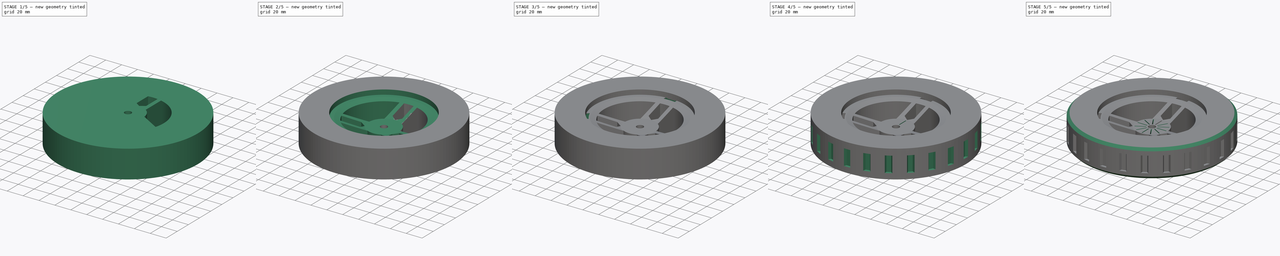
[diagram: build sequence overview — one tinted view per stage of 5, left to right]
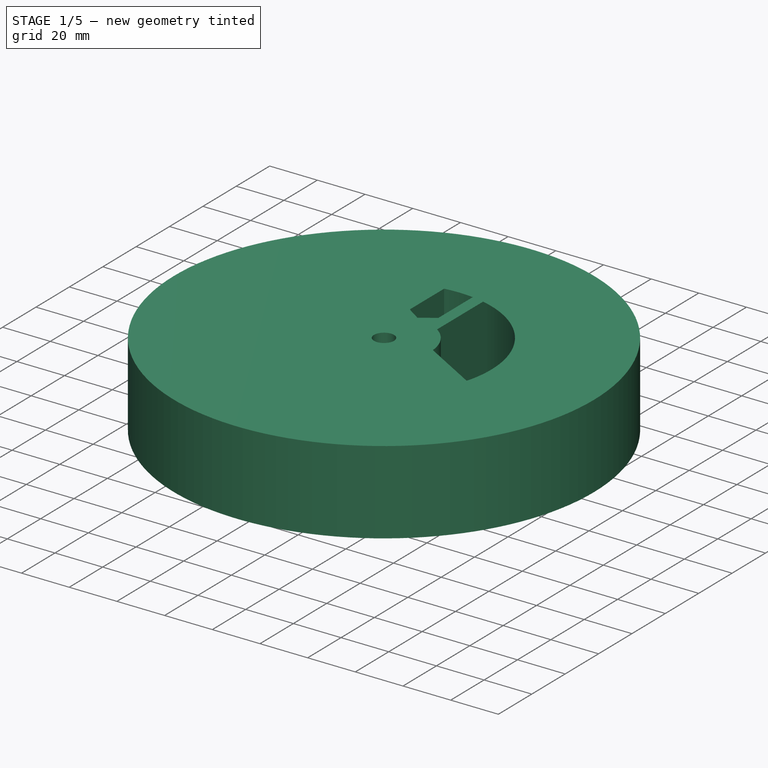
[diagram: stage 1 of 5 — iso view after this stage's code; geometry added in this stage tinted green]
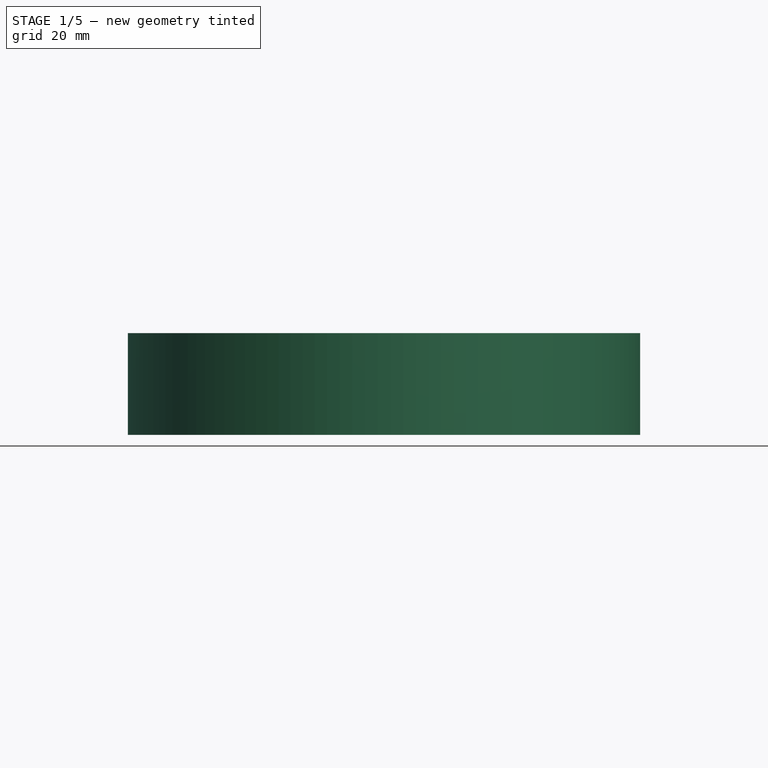
[diagram: stage 1 of 5 — front view after this stage's code; geometry added in this stage tinted green]
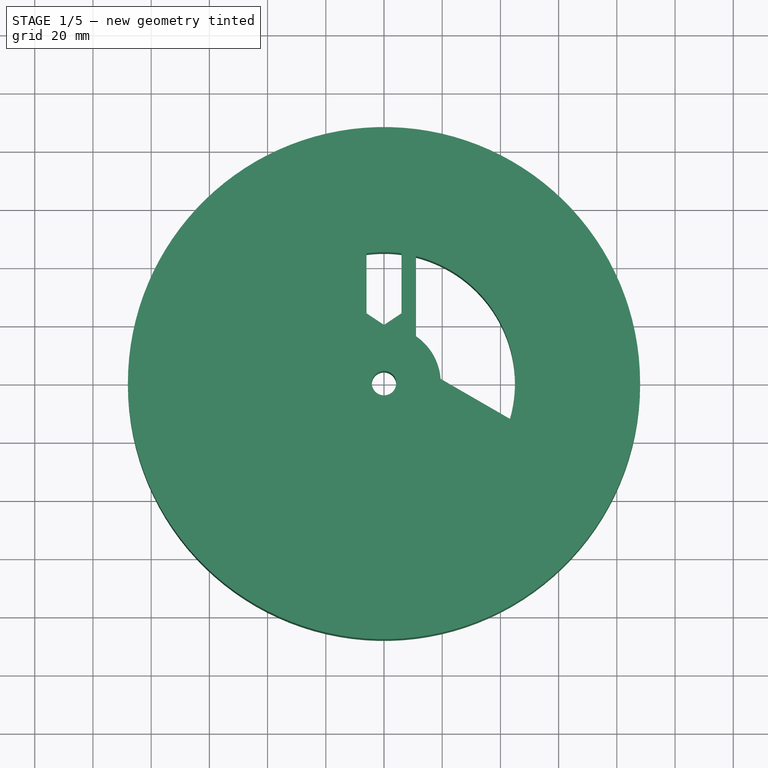
[diagram: stage 1 of 5 — top view after this stage's code; geometry added in this stage tinted green]
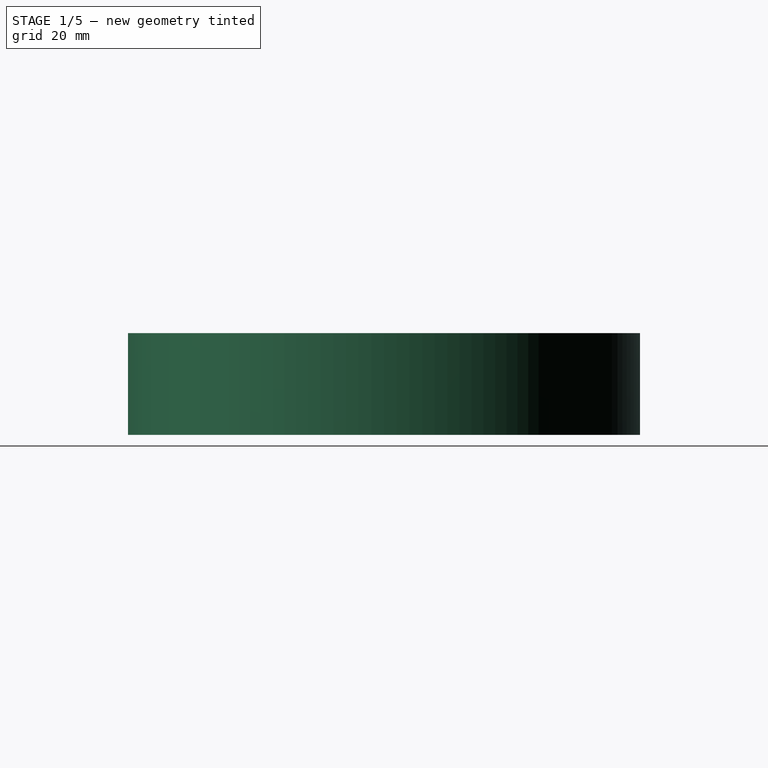
[diagram: stage 1 of 5 — right view after this stage's code; geometry added in this stage tinted green]
FCSTD DOCUMENT  (FreeCAD 0.18.4R)
Label: lawnmower-frontwheel
License: All rights reserved
LicenseURL: http://en.wikipedia.org/wiki/All_rights_reserved
objects: Sketcher::SketchObject×8, PartDesign::Pocket×6, PartDesign::PolarPattern×6, PartDesign::Chamfer×2, PartDesign::Pad×1, PartDesign::Groove×1, PartDesign::Plane×1, PartDesign::Body×1
note: 34 computed .brp shape members not serialized (recipe doc carries the construction recipe); baked Part::Feature solids carry a one-line shape summary decoded from their .brp

FEATURE [Sketcher::SketchObject] Sketch
  MapMode = 5
  Support = -> [XY_Plane]
  sketch-geometry (2):
    g0: Circle CenterX=0 CenterY=0 CenterZ=0 NormalX=0 NormalY=0 NormalZ=1 AngleXU=0 Radius=88
    g1: Circle CenterX=0 CenterY=0 CenterZ=0 NormalX=0 NormalY=0 NormalZ=1 AngleXU=0 Radius=4.2
  constraints (4):
    c: Coincident(g0,g-1)
    c: Radius(g0) = 88
    c: Coincident(g1,g0)
    c: Radius(g1) = 4.2
FEATURE [PartDesign::Pad] Pad
  Length = 35
  Length2 = 100
  Profile = -> Sketch
  Refine = true
  Type = 0
FEATURE [Sketcher::SketchObject] Sketch001
  MapMode = 5
  Support = -> [XY_Plane]
  sketch-geometry (7):
    g0: Circle [constr] CenterX=0 CenterY=0 CenterZ=0 NormalX=0 NormalY=0 NormalZ=1 AngleXU=0 Radius=45
    g1: Circle [constr] CenterX=0 CenterY=0 CenterZ=0 NormalX=0 NormalY=0 NormalZ=1 AngleXU=0 Radius=20
    g2: LineSegment StartX=-6 StartY=44.5982 StartZ=0 EndX=-6 EndY=24 EndZ=0
    g3: LineSegment StartX=-6 StartY=24 StartZ=0 EndX=0 EndY=20 EndZ=0
    g4: LineSegment StartX=0 StartY=20 StartZ=0 EndX=6 EndY=24 EndZ=0
    g5: LineSegment StartX=6 StartY=24 StartZ=0 EndX=6 EndY=44.5982 EndZ=0
    g6: ArcOfCircle CenterX=0 CenterY=0 CenterZ=0 NormalX=0 NormalY=0 NormalZ=1 AngleXU=0 Radius=45 StartAngle=1.43706 EndAngle=1.70453
  constraints (18):
    c: Coincident(g0,g-1)
    c: Radius(g0) = 45
    c: Coincident(g1,g0)
    c: Radius(g1) = 20
    c: PointOnObject(g2,g0)
    c: Vertical(g2)
    c: Coincident(g2,g3)
    c: PointOnObject(g3,g1)
    c: Coincident(g3,g4)
    c: Coincident(g4,g5)
    c: Vertical(g5)
    c: Coincident(g6,g-1)
    c: Coincident(g6,g2)
    c: Coincident(g6,g5)
    c: DistanceY(g4,g4) = 4
    c: Symmetric(g2,g4,g-2)
    c: PointOnObject(g3,g-2)
    c: DistanceX(g2,g5) = 12
FEATURE [PartDesign::Pocket] Pocket
  BaseFeature = -> Pad
  Length = 5
  Length2 = 100
  Midplane = true
  Profile = -> Sketch001
  Refine = true
  Type = 1
FEATURE [Sketcher::SketchObject] CopySketch002
  sketch-geometry (8):
    g0: Circle [constr] CenterX=0 CenterY=0 CenterZ=0 NormalX=0 NormalY=0 NormalZ=1 AngleXU=0 Radius=45
    g1: Circle [constr] CenterX=0 CenterY=0 CenterZ=0 NormalX=0 NormalY=0 NormalZ=1 AngleXU=0 Radius=19.5
    g2: LineSegment StartX=19.4441 StartY=1.47566 StartZ=0 EndX=43.2889 EndY=-12.2911 EndZ=0
    g3: ArcOfCircle CenterX=0 CenterY=0 CenterZ=0 NormalX=0 NormalY=0 NormalZ=1 AngleXU=0 Radius=45 StartAngle=6.00653 EndAngle=7.60703
    g4: ArcOfCircle CenterX=0 CenterY=0 CenterZ=0 NormalX=0 NormalY=0 NormalZ=1 AngleXU=0 Radius=19.5 StartAngle=0.0757472 EndAngle=0.97145
    g5: LineSegment [constr] StartX=0 StartY=0 StartZ=0 EndX=11 EndY=16.1012 EndZ=0
    g6: LineSegment StartX=11 StartY=16.1012 StartZ=0 EndX=11 EndY=43.6348 EndZ=0
    g7: LineSegment [constr] StartX=0 StartY=0 StartZ=0 EndX=38.9711 EndY=-22.5 EndZ=0
  constraints (21):
    c: Coincident(g0,g-1)
    c: Radius(g0) = 45
    c: Coincident(g1,g0)
    c: Radius(g1) = 19.5
    c: PointOnObject(g4,g1)
    c: PointOnObject(g3,g0)
    c: Coincident(g3,g-1)
    c: Coincident(g3,g2)
    c: Coincident(g4,g3)
    c: Coincident(g4,g2)
    c: Coincident(g5,g3)
    c: Coincident(g6,g4)
    c: Vertical(g6)
    c: Coincident(g3,g6)
    c: Coincident(g5,g4)
    c: DistanceX(g-1,g3) = 11
    c: Coincident(g7,g3)
    c: PointOnObject(g7,g0)
    c: Angle(g7,g-2) = 2.0944
    c: Parallel(g7,g2)
    c: Distance(g2,g7) = 11
FEATURE [PartDesign::Pocket] Pocket001
  BaseFeature = -> Pocket
  Length = 5
  Length2 = 100
  Midplane = true
  Profile = -> CopySketch002
  Refine = true
  Type = 1
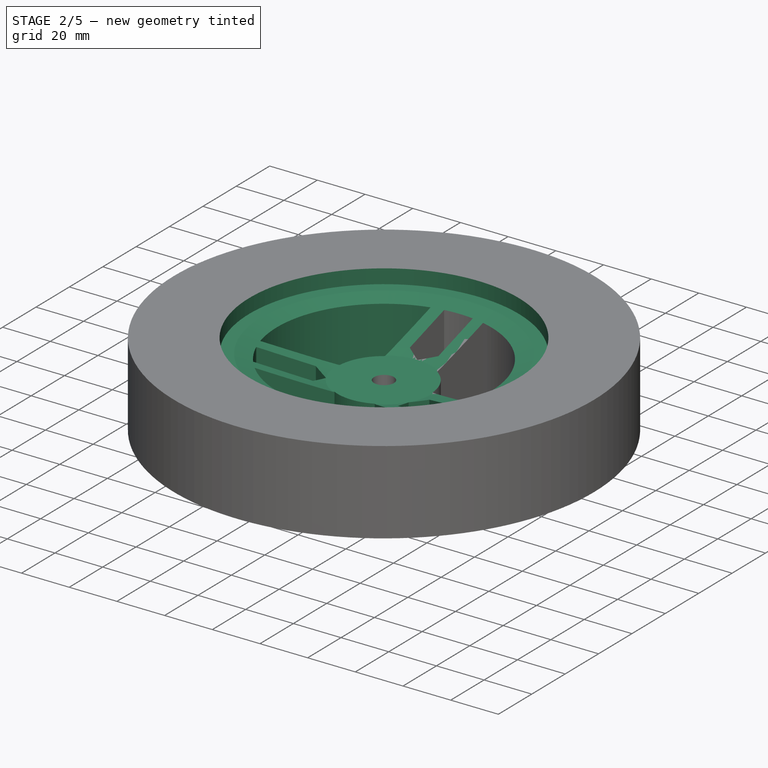
[diagram: stage 2 of 5 — iso view after this stage's code; geometry added in this stage tinted green]
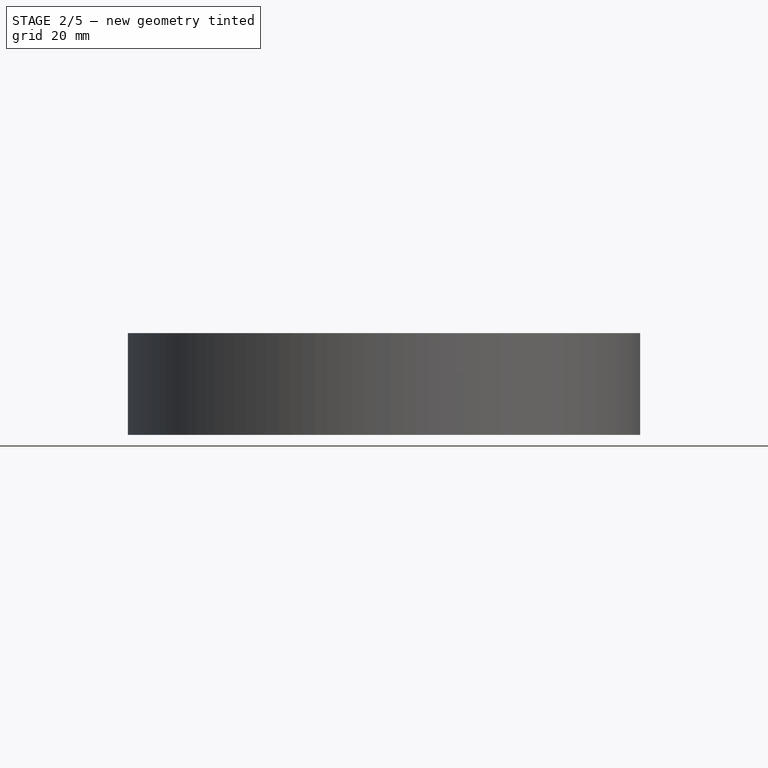
[diagram: stage 2 of 5 — front view after this stage's code; geometry added in this stage tinted green]
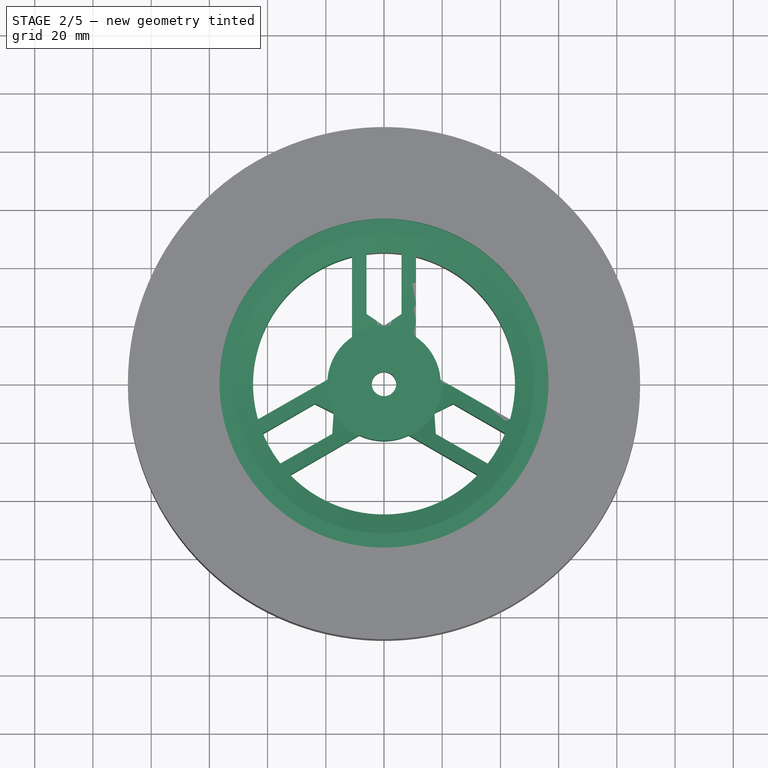
[diagram: stage 2 of 5 — top view after this stage's code; geometry added in this stage tinted green]
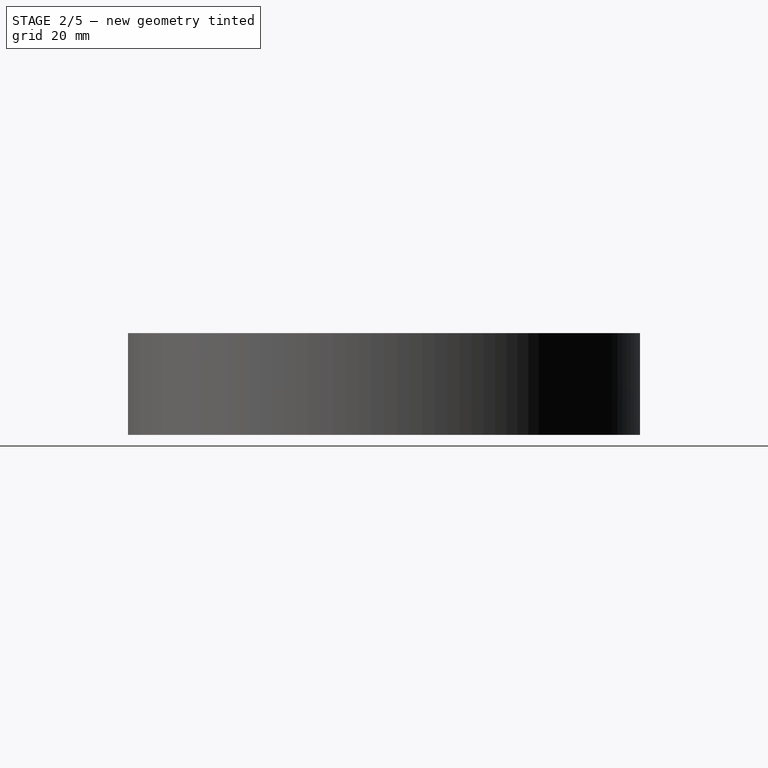
[diagram: stage 2 of 5 — right view after this stage's code; geometry added in this stage tinted green]
FEATURE [PartDesign::PolarPattern] PolarPattern
  Angle = 360
  Axis = -> CopySketch002 [N_Axis]
  BaseFeature = -> Pocket001
  Occurrences = 3
  Originals = -> [Pocket001]
  Refine = true
FEATURE [PartDesign::PolarPattern] PolarPattern001
  Angle = 360
  Axis = -> Sketch001 [N_Axis]
  BaseFeature = -> PolarPattern
  Occurrences = 3
  Originals = -> [Pocket]
  Refine = true
FEATURE [Sketcher::SketchObject] Sketch002  label="hubcap_cutout"
  MapMode = 5
  Placement = pos=(0,0,0) rot=(1,0,0;1.5708rad)
  Support = -> [XZ_Plane]
  sketch-geometry (6):
    g0: LineSegment StartX=0 StartY=35 StartZ=0 EndX=56.5 EndY=35 EndZ=0
    g1: LineSegment StartX=56.5 StartY=35 StartZ=0 EndX=56.5 EndY=29 EndZ=0
    g2: LineSegment StartX=56.5 StartY=29 StartZ=0 EndX=51.5 EndY=29 EndZ=0
    g3: LineSegment StartX=51.5 StartY=29 StartZ=0 EndX=20 EndY=19 EndZ=0
    g4: LineSegment StartX=20 StartY=19 StartZ=0 EndX=0 EndY=19 EndZ=0
    g5: LineSegment StartX=0 StartY=19 StartZ=0 EndX=0 EndY=35 EndZ=0
  constraints (18):
    c: Horizontal(g0)
    c: Coincident(g0,g1)
    c: Vertical(g1)
    c: Coincident(g1,g2)
    c: Coincident(g2,g3)
    c: Coincident(g3,g4)
    c: PointOnObject(g4,g-2)
    c: Horizontal(g4)
    c: Coincident(g4,g5)
    c: Vertical(g5)
    c: Coincident(g5,g0)
    c: DistanceY(g-1,g0) = 35
    c: DistanceY(g-1,g4) = 19
    c: DistanceX(g0,g0) = 56.5
    c: Horizontal(g2)
    c: DistanceY(g1,g1) = 6
    c: DistanceX(g2,g2) = 5
    c: DistanceX(g4,g4) = 20
FEATURE [PartDesign::Groove] Groove
  Angle = 360
  Axis = (0,-2e-16,1)
  Base = (0,0,0)
  BaseFeature = -> PolarPattern001
  Profile = -> Sketch002
  ReferenceAxis = -> Sketch002 [V_Axis]
  Refine = true
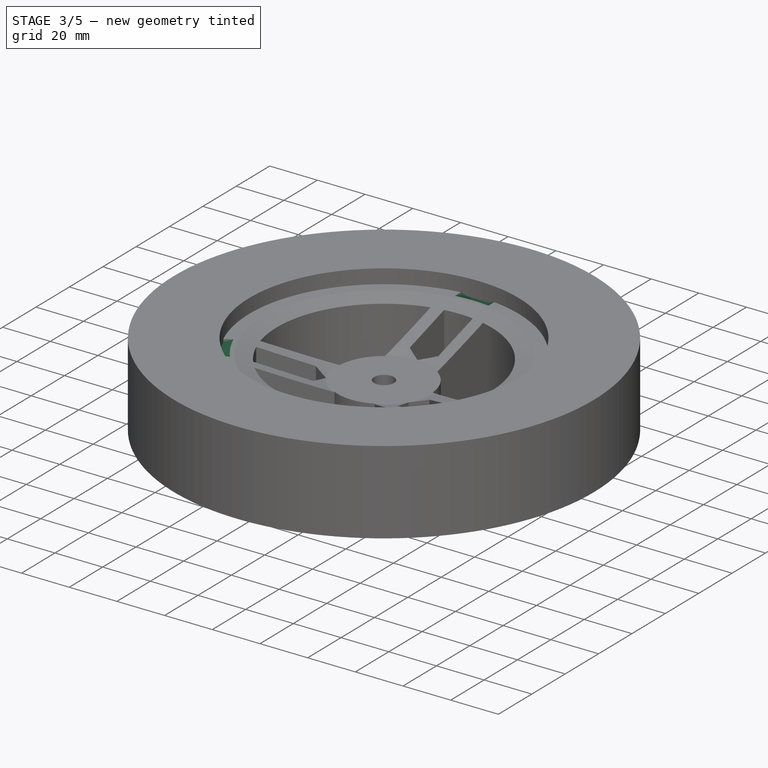
[diagram: stage 3 of 5 — iso view after this stage's code; geometry added in this stage tinted green]
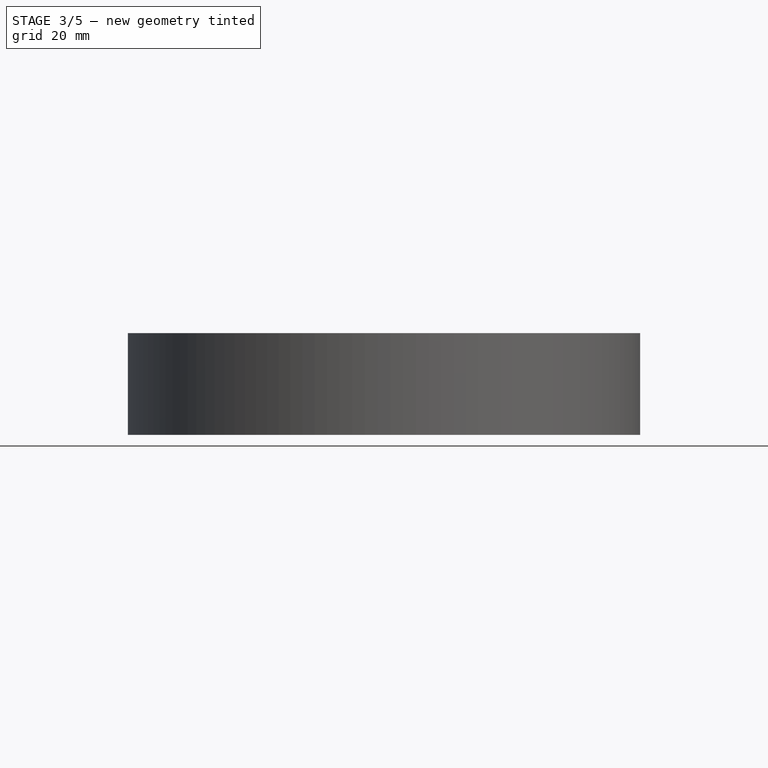
[diagram: stage 3 of 5 — front view after this stage's code; geometry added in this stage tinted green]
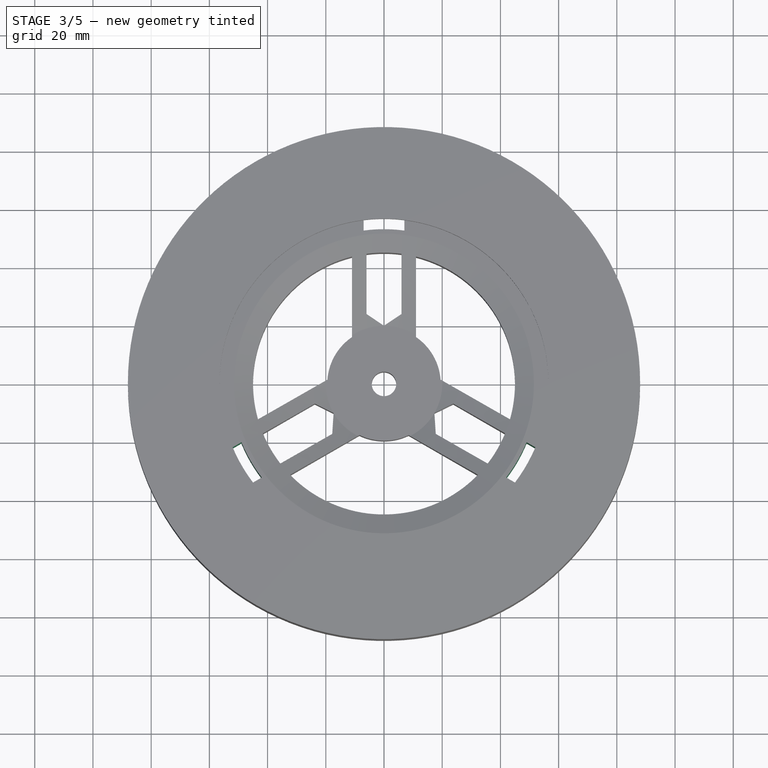
[diagram: stage 3 of 5 — top view after this stage's code; geometry added in this stage tinted green]
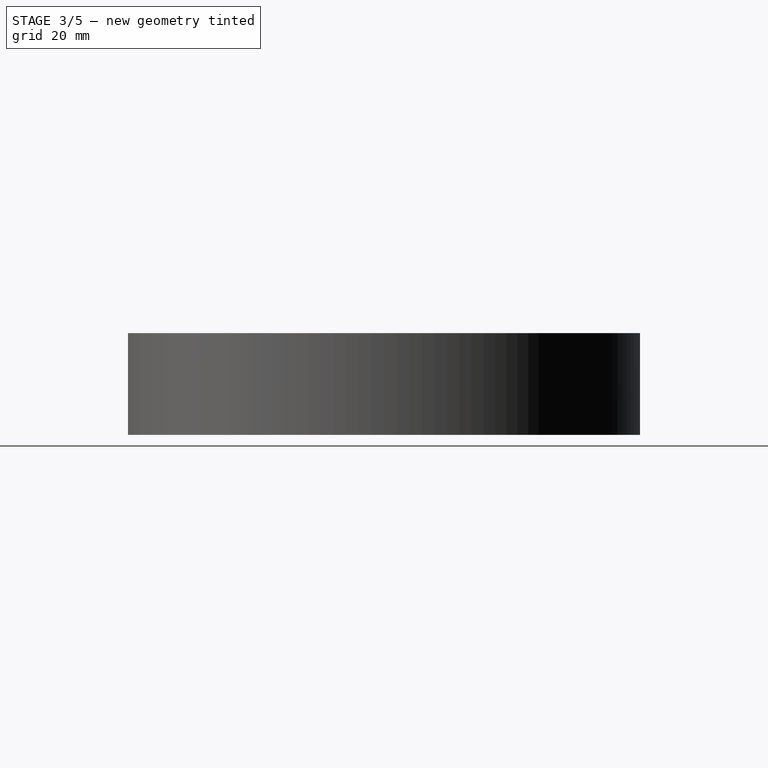
[diagram: stage 3 of 5 — right view after this stage's code; geometry added in this stage tinted green]
FEATURE [PartDesign::Plane] DatumPlane
  AttachmentOffset = pos=(0,0,17) rot=(0,0,1;0rad)
  Length = 211.187
  MapMode = 5
  Placement = pos=(0,0,17) rot=(0,0,1;0rad)
  ResizeMode = 0
  Support = -> [XY_Plane]
  Width = 211.177
FEATURE [Sketcher::SketchObject] Sketch003  label="tredcutout"
  MapMode = 5
  Placement = pos=(0,0,17) rot=(0,0,1;0rad)
  Support = -> [DatumPlane]
  sketch-geometry (4):
    g0: LineSegment StartX=-5 StartY=90 StartZ=0 EndX=5 EndY=90 EndZ=0
    g1: LineSegment StartX=5 StartY=90 StartZ=0 EndX=2.5 EndY=85 EndZ=0
    g2: LineSegment StartX=2.5 StartY=85 StartZ=0 EndX=-2.5 EndY=85 EndZ=0
    g3: LineSegment StartX=-2.5 StartY=85 StartZ=0 EndX=-5 EndY=90 EndZ=0
  constraints (10):
    c: Coincident(g0,g1)
    c: Coincident(g1,g2)
    c: Coincident(g2,g3)
    c: Coincident(g3,g0)
    c: DistanceY(g-1,g1) = 85
    c: DistanceY(g1,g1) = 5
    c: Symmetric(g0,g0,g-2)
    c: DistanceX(g0,g0) = 10
    c: DistanceX(g2,g2) = 5
    c: Symmetric(g1,g2,g-2)
FEATURE [Sketcher::SketchObject] Sketch004  label="clipentry"
  ExternalGeometry = -> [Groove]
  MapMode = 5
  Support = -> [XY_Plane]
  sketch-geometry (5):
    g0: Circle [constr] CenterX=0 CenterY=0 CenterZ=0 NormalX=0 NormalY=0 NormalZ=1 AngleXU=0 Radius=53
    g1: LineSegment StartX=-7 StartY=52.5357 StartZ=0 EndX=-7 EndY=56.0647 EndZ=0
    g2: LineSegment StartX=7 StartY=52.5357 StartZ=0 EndX=7 EndY=56.0647 EndZ=0
    g3: ArcOfCircle CenterX=3.1e-15 CenterY=0 CenterZ=0 NormalX=0 NormalY=0 NormalZ=1 AngleXU=0 Radius=56.5 StartAngle=1.44658 EndAngle=1.69501
    g4: ArcOfCircle CenterX=3.1e-15 CenterY=0 CenterZ=0 NormalX=0 NormalY=0 NormalZ=1 AngleXU=0 Radius=53 StartAngle=1.43833 EndAngle=1.70326
  constraints (14):
    c: Coincident(g0,g-1)
    c: Radius(g0) = 53
    c: PointOnObject(g1,g0)
    c: Coincident(g4,g3)
    c: Coincident(g4,g1)
    c: Coincident(g4,g2)
    c: Coincident(g3,g1)
    c: Coincident(g3,g2)
    c: PointOnObject(g2,g-3)
    c: DistanceX(g1,g2) = 14
    c: Vertical(g1)
    c: Symmetric(g2,g1,g-2)
    c: Symmetric(g2,g1,g-2)
    c: Coincident(g3,g-1)
FEATURE [PartDesign::Pocket] Pocket003
  BaseFeature = -> Groove
  Length = 5
  Length2 = 100
  Midplane = true
  Profile = -> Sketch004
  Refine = true
  Type = 1
FEATURE [Sketcher::SketchObject] Sketch005  label="clipcutout"
  ExternalGeometry = -> [Pocket003]
  MapMode = 5
  Placement = pos=(0,-4.2e-15,19) rot=(0,0,1;0rad)
  Support = -> [Pocket003]
  sketch-geometry (4):
    g0: LineSegment StartX=-7 StartY=56.0647 StartZ=0 EndX=7 EndY=56.0647 EndZ=0
    g1: LineSegment StartX=7 StartY=56.0647 StartZ=0 EndX=7 EndY=62.0647 EndZ=0
    g2: LineSegment StartX=7 StartY=62.0647 StartZ=0 EndX=-7 EndY=62.0647 EndZ=0
    g3: LineSegment StartX=-7 StartY=62.0647 StartZ=0 EndX=-7 EndY=56.0647 EndZ=0
  constraints (10):
    c: Coincident(g0,g1)
    c: Coincident(g1,g2)
    c: Coincident(g2,g3)
    c: Coincident(g3,g0)
    c: Horizontal(g2)
    c: Vertical(g1)
    c: Vertical(g3)
    c: Coincident(g0,g-3)
    c: DistanceY(g1,g1) = 6
    c: Coincident(g0,g-3)
FEATURE [PartDesign::PolarPattern] PolarPattern003
  Angle = 360
  Axis = -> Sketch004 [N_Axis]
  BaseFeature = -> Pocket003
  Occurrences = 3
  Originals = -> [Pocket003]
  Refine = true
FEATURE [PartDesign::Pocket] Pocket004
  BaseFeature = -> PolarPattern003
  Length = 100
  Length2 = 9
  Profile = -> Sketch005
  Refine = true
  Type = 4
FEATURE [PartDesign::PolarPattern] PolarPattern004
  Angle = 360
  Axis = -> Sketch005 [N_Axis]
  BaseFeature = -> Pocket004
  Occurrences = 3
  Originals = -> [Pocket004]
  Refine = true
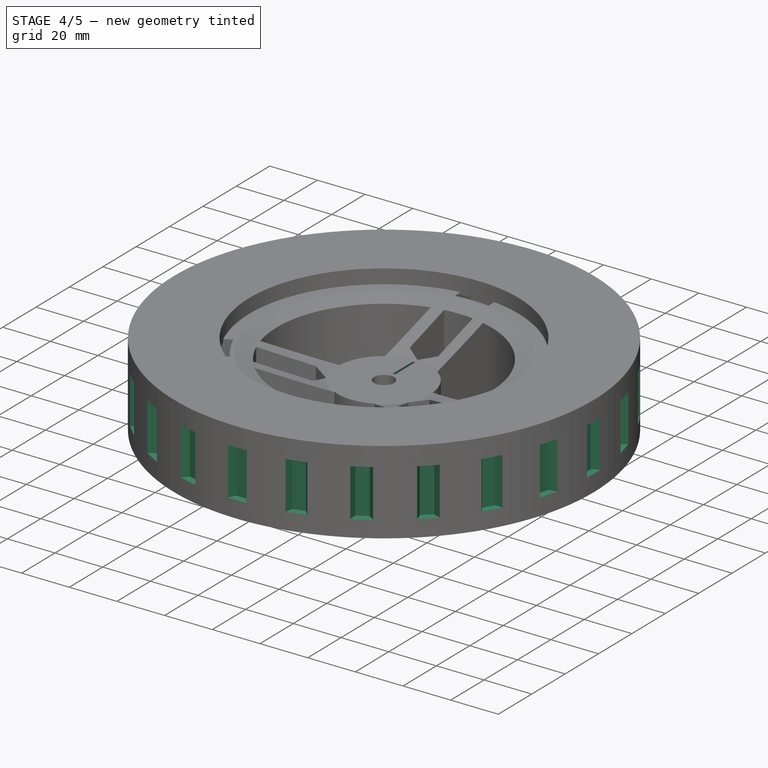
[diagram: stage 4 of 5 — iso view after this stage's code; geometry added in this stage tinted green]
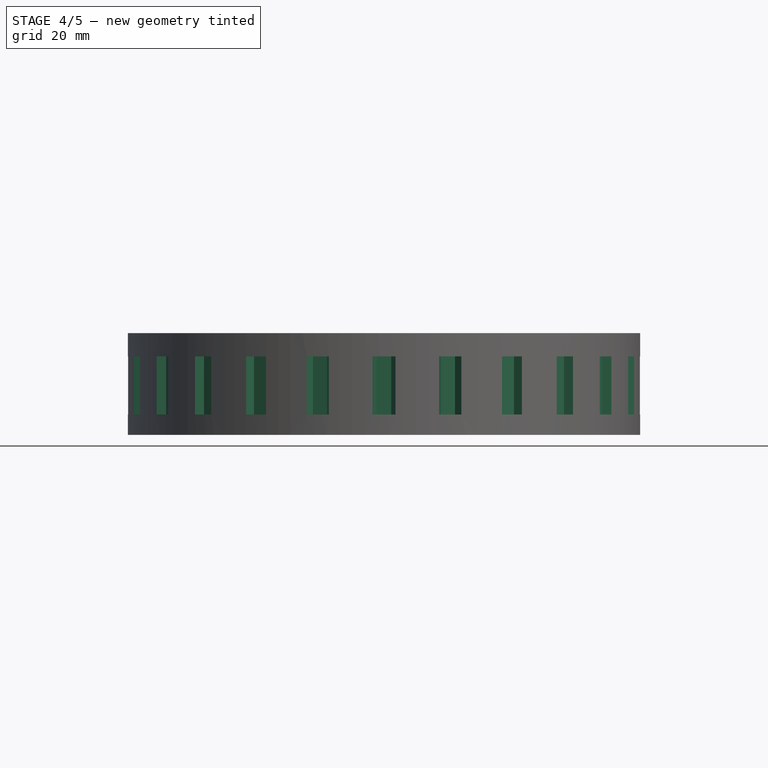
[diagram: stage 4 of 5 — front view after this stage's code; geometry added in this stage tinted green]
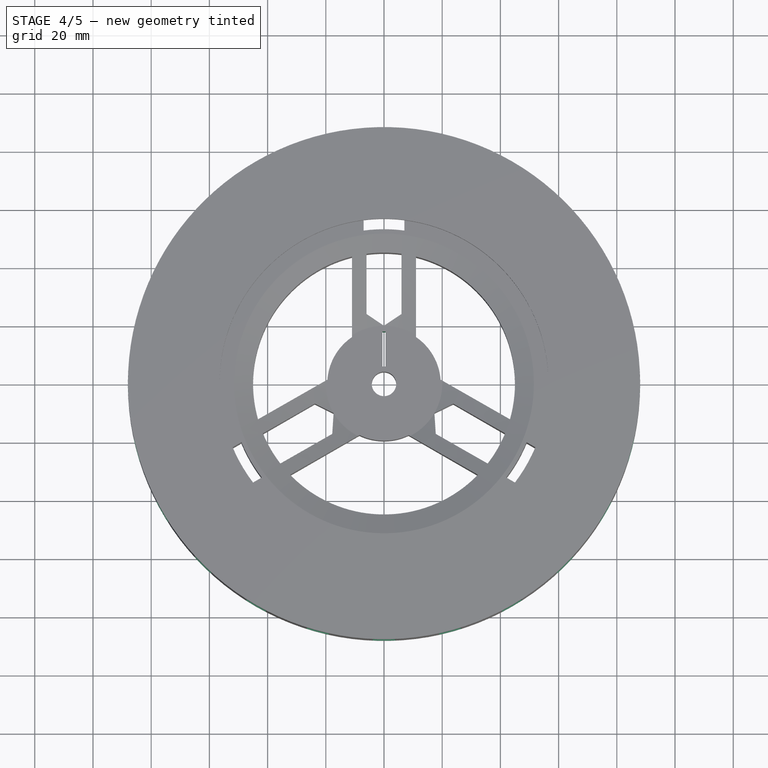
[diagram: stage 4 of 5 — top view after this stage's code; geometry added in this stage tinted green]
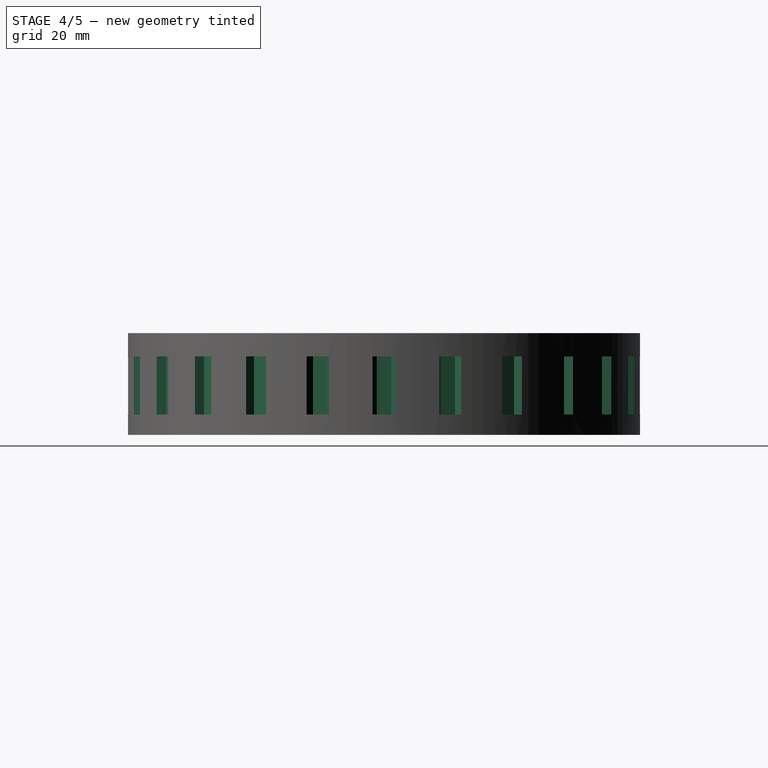
[diagram: stage 4 of 5 — right view after this stage's code; geometry added in this stage tinted green]
FEATURE [PartDesign::Pocket] Pocket002
  BaseFeature = -> PolarPattern004
  Length = 20
  Length2 = 100
  Midplane = true
  Profile = -> Sketch003
  Refine = true
  Type = 0
FEATURE [PartDesign::PolarPattern] PolarPattern002
  Angle = 360
  Axis = -> Sketch003 [N_Axis]
  BaseFeature = -> Pocket002
  Occurrences = 24
  Originals = -> [Pocket002]
  Refine = true
FEATURE [Sketcher::SketchObject] Sketch006
  MapMode = 5
  Support = -> [XY_Plane]
  sketch-geometry (4):
    g0: LineSegment StartX=-0.5 StartY=6 StartZ=0 EndX=0.5 EndY=6 EndZ=0
    g1: LineSegment StartX=0.5 StartY=6 StartZ=0 EndX=0.5 EndY=18 EndZ=0
    g2: LineSegment StartX=0.5 StartY=18 StartZ=0 EndX=-0.5 EndY=18 EndZ=0
    g3: LineSegment StartX=-0.5 StartY=18 StartZ=0 EndX=-0.5 EndY=6 EndZ=0
  constraints (11):
    c: Coincident(g0,g1)
    c: Coincident(g1,g2)
    c: Coincident(g2,g3)
    c: Coincident(g3,g0)
    c: Horizontal(g0)
    c: Vertical(g1)
    c: Vertical(g3)
    c: DistanceX(g2,g2) = 1
    c: DistanceY(g1,g1) = 12
    c: DistanceY(g-1,g0) = 6
    c: Symmetric(g1,g2,g-2)
FEATURE [PartDesign::Pocket] Pocket005
  BaseFeature = -> PolarPattern002
  Length = 5
  Length2 = 100
  Midplane = true
  Profile = -> Sketch006
  Refine = true
  Type = 1
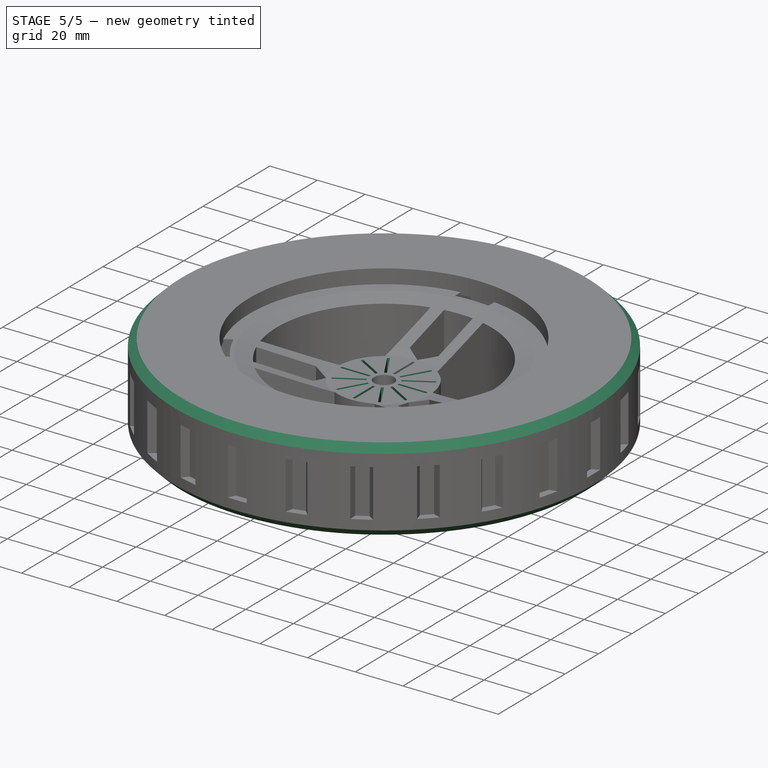
[diagram: stage 5 of 5 — iso view after this stage's code; geometry added in this stage tinted green]
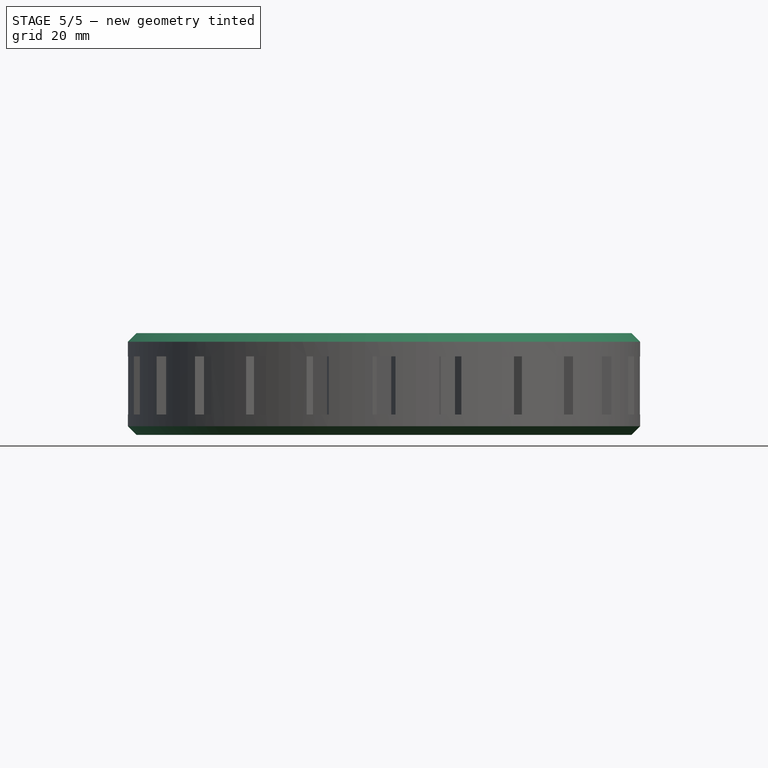
[diagram: stage 5 of 5 — front view after this stage's code; geometry added in this stage tinted green]
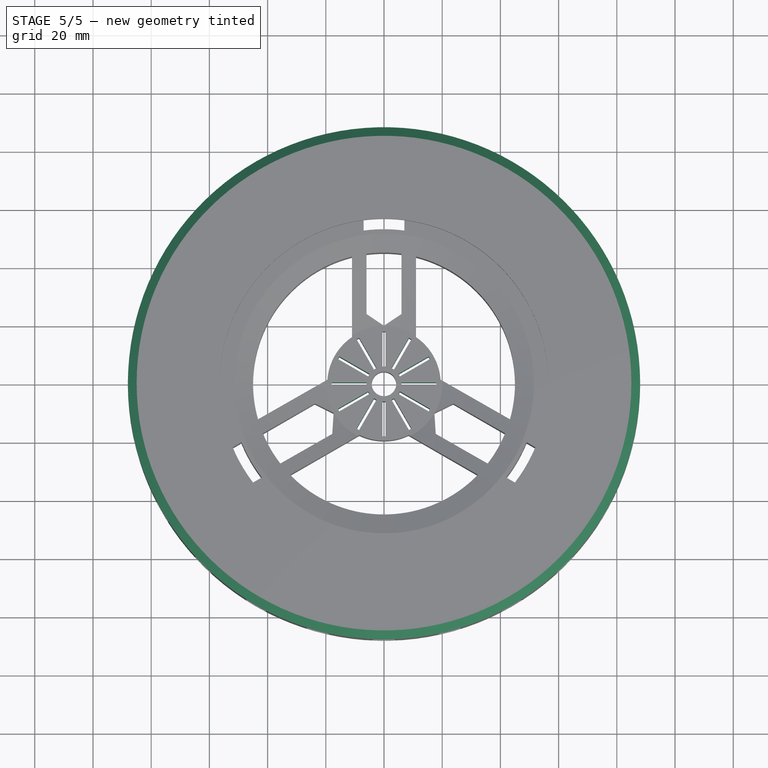
[diagram: stage 5 of 5 — top view after this stage's code; geometry added in this stage tinted green]
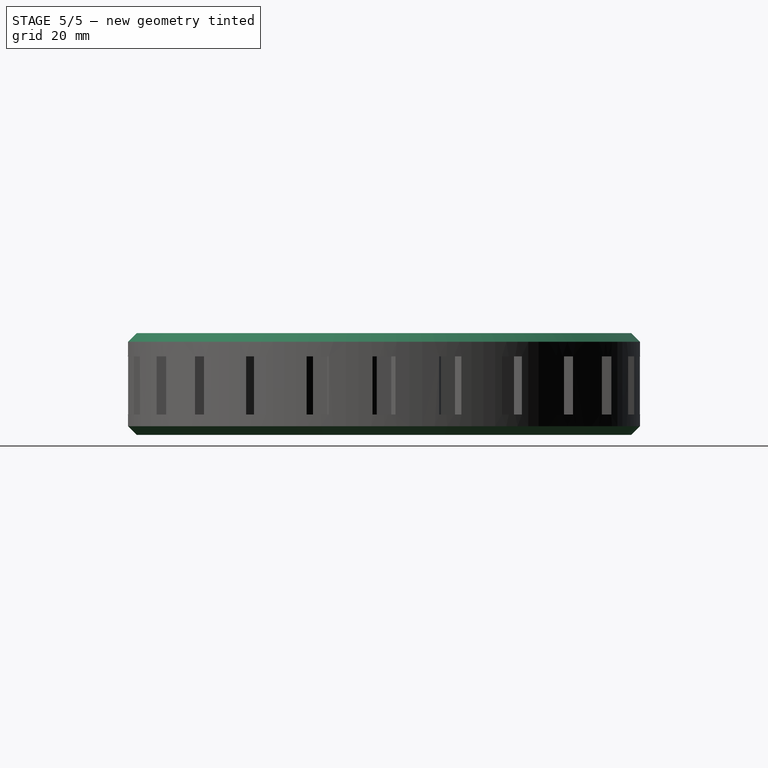
[diagram: stage 5 of 5 — right view after this stage's code; geometry added in this stage tinted green]
FEATURE [PartDesign::PolarPattern] PolarPattern005
  Angle = 360
  Axis = -> Sketch006 [N_Axis]
  BaseFeature = -> Pocket005
  Occurrences = 12
  Originals = -> [Pocket005]
  Refine = true
FEATURE [PartDesign::Chamfer] Chamfer
  Base = -> PolarPattern005 [Edge6,Edge10]
  BaseFeature = -> PolarPattern005
  Size = 3
FEATURE [PartDesign::Chamfer] Chamfer001
  Base = -> Chamfer [Edge362]
  BaseFeature = -> Chamfer
  Size = 1
FEATURE [PartDesign::Body] Body
  Group = -> [Sketch,Pad,Sketch001,Pocket,Pocket001,PolarPattern,PolarPattern001,Sketch002,Groove,DatumPlane,Sketch003,Sketch004,Pocket003,Sketch005,PolarPattern003,Pocket004,PolarPattern004,Pocket002,PolarPattern002,Sketch006,Pocket005,PolarPattern005,Chamfer,Chamfer001]
  Origin = -> Origin
  Tip = -> Chamfer001
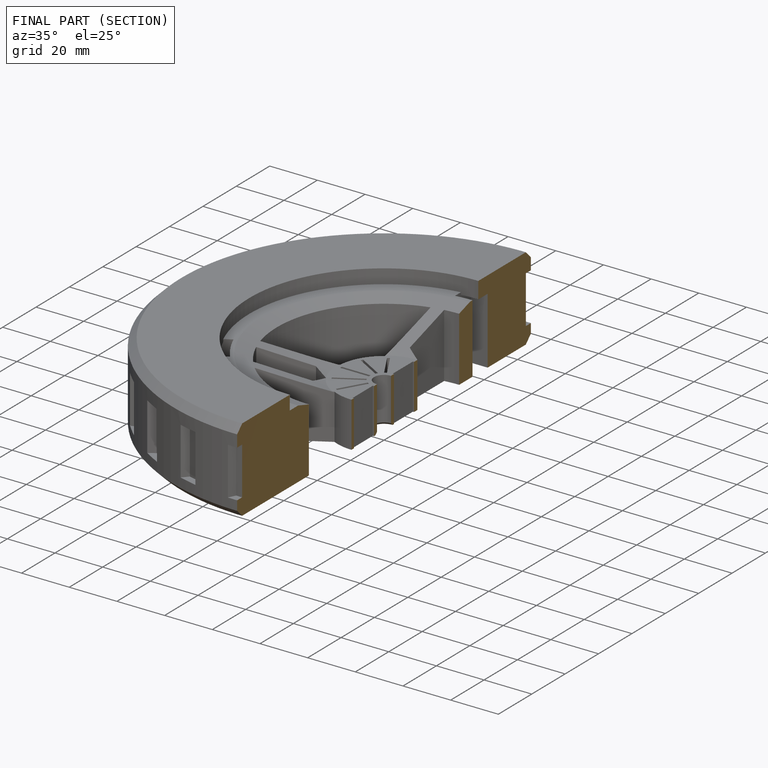
[diagram: finished part — half-section view (interior)]
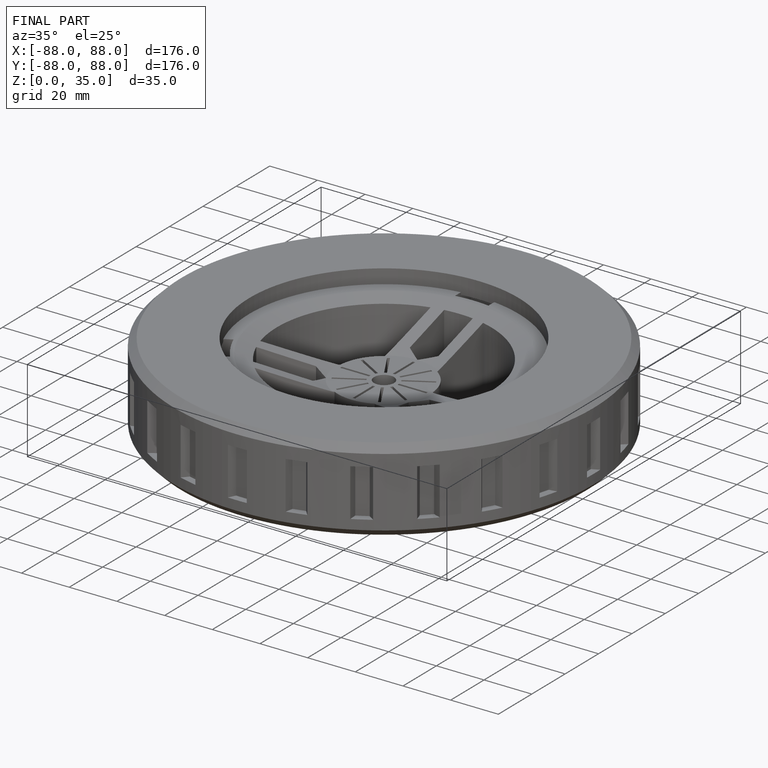
[diagram: finished part — iso view with bounding-box wireframe]
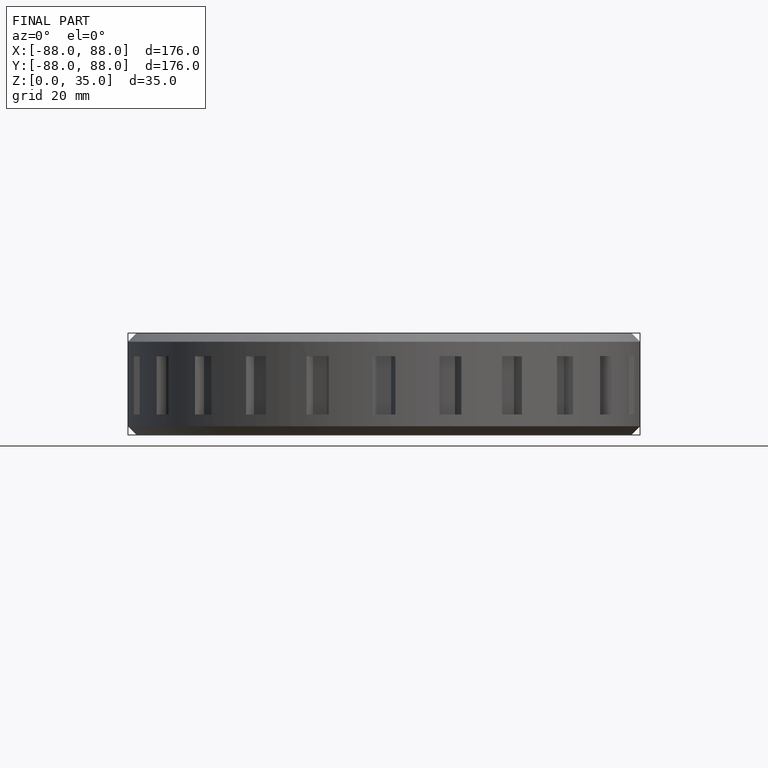
[diagram: finished part — front view with bounding-box wireframe]
